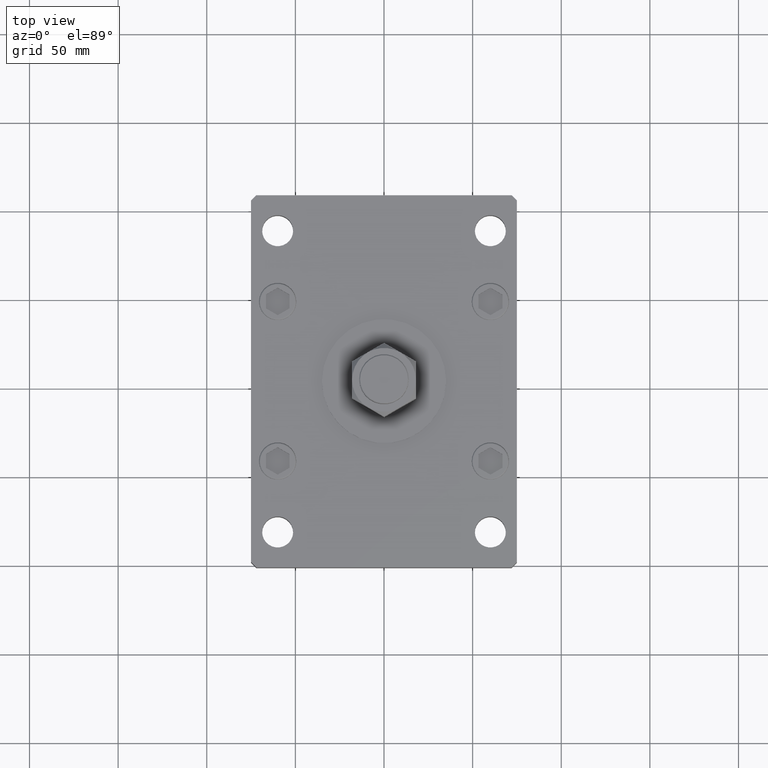
[diagram: clean part render]
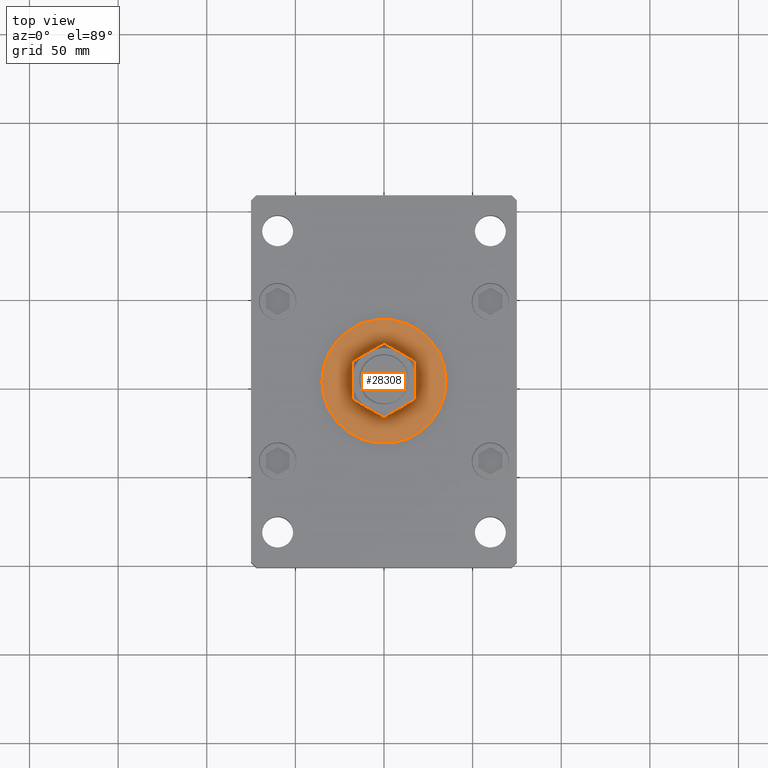
[diagram: same view with one face highlighted and labeled with its STEP entity id]
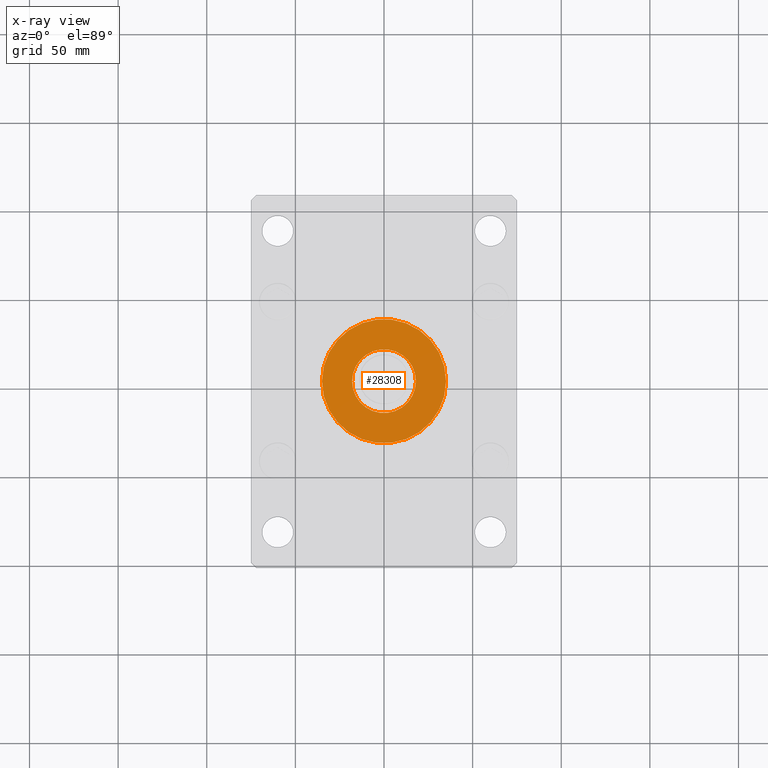
[diagram: x-ray of the same camera — body ghosted, the highlighted face saturated]
A machine part, top view. The second image highlights one B-rep face of the part: STEP entity #28308.
The next image is the same camera in x-ray: the body ghosted, the highlighted face saturated — about 0% of this face is hidden behind the body in this view.
In plain terms, the highlighted planar face has unit normal (0, 0, 1).
Its self-contained STEP definition (entity closure, byte-faithful):
#965 = VERTEX_POINT ( 'NONE', #21665 ) ;
#2093 = DIRECTION ( 'NONE',  ( 1.000000000000000000, 0.000000000000000000, 0.000000000000000000 ) ) ;
#2470 = CARTESIAN_POINT ( 'NONE',  ( 0.000000000000000000, 0.000000000000000000, 28.99999999999999645 ) ) ;
#3911 = DIRECTION ( 'NONE',  ( 0.000000000000000000, 0.000000000000000000, 1.000000000000000000 ) ) ;
#4380 = EDGE_LOOP ( 'NONE', ( #31790, #54957 ) ) ;
#8158 = ORIENTED_EDGE ( 'NONE', *, *, #54157, .F. ) ;
#8908 = CIRCLE ( 'NONE', #45489, 35.00000000000000711 ) ;
#10579 = FACE_OUTER_BOUND ( 'NONE', #4380, .T. ) ;
#11452 = AXIS2_PLACEMENT_3D ( 'NONE', #17314, #29903, #30446 ) ;
#11687 = PLANE ( 'NONE',  #31114 ) ;
#17314 = CARTESIAN_POINT ( 'NONE',  ( 0.000000000000000000, 0.000000000000000000, 28.99999999999999645 ) ) ;
#19754 = VERTEX_POINT ( 'NONE', #28006 ) ;
#19824 = CARTESIAN_POINT ( 'NONE',  ( 18.00000000000000000, 0.000000000000000000, 28.99999999999999645 ) ) ;
#20102 = VERTEX_POINT ( 'NONE', #19824 ) ;
#20637 = DIRECTION ( 'NONE',  ( 0.000000000000000000, 0.000000000000000000, 1.000000000000000000 ) ) ;
#21665 = CARTESIAN_POINT ( 'NONE',  ( -18.00000000000000000, 2.204364238465235428E-15, 28.99999999999999645 ) ) ;
#22019 = AXIS2_PLACEMENT_3D ( 'NONE', #2470, #30515, #49405 ) ;
#27302 = EDGE_CURVE ( 'NONE', #965, #20102, #35541, .T. ) ;
#28006 = CARTESIAN_POINT ( 'NONE',  ( -35.00000000000000711, 0.000000000000000000, 28.99999999999999645 ) ) ;
#28308 = ADVANCED_FACE ( 'NONE', ( #31823, #10579 ), #11687, .T. ) ;
#29903 = DIRECTION ( 'NONE',  ( 0.000000000000000000, 0.000000000000000000, 1.000000000000000000 ) ) ;
#30446 = DIRECTION ( 'NONE',  ( 1.000000000000000000, 0.000000000000000000, 0.000000000000000000 ) ) ;
#30515 = DIRECTION ( 'NONE',  ( 0.000000000000000000, 0.000000000000000000, 1.000000000000000000 ) ) ;
#30759 = EDGE_CURVE ( 'NONE', #19754, #45746, #8908, .T. ) ;
#31114 = AXIS2_PLACEMENT_3D ( 'NONE', #46065, #20637, #33201 ) ;
#31790 = ORIENTED_EDGE ( 'NONE', *, *, #30759, .T. ) ;
#31823 = FACE_BOUND ( 'NONE', #43563, .T. ) ;
#32701 = CIRCLE ( 'NONE', #22019, 18.00000000000000000 ) ;
#33201 = DIRECTION ( 'NONE',  ( 1.000000000000000000, 0.000000000000000000, -0.000000000000000000 ) ) ;
#33696 = CARTESIAN_POINT ( 'NONE',  ( 35.00000000000000711, 4.286263797015737285E-15, 28.99999999999999645 ) ) ;
#35541 = CIRCLE ( 'NONE', #11452, 18.00000000000000000 ) ;
#37726 = DIRECTION ( 'NONE',  ( 1.000000000000000000, 0.000000000000000000, 0.000000000000000000 ) ) ;
#39799 = CIRCLE ( 'NONE', #50537, 35.00000000000000711 ) ;
#41932 = CARTESIAN_POINT ( 'NONE',  ( 0.000000000000000000, 0.000000000000000000, 28.99999999999999645 ) ) ;
#43563 = EDGE_LOOP ( 'NONE', ( #8158, #51544 ) ) ;
#45489 = AXIS2_PLACEMENT_3D ( 'NONE', #41932, #3911, #37726 ) ;
#45746 = VERTEX_POINT ( 'NONE', #33696 ) ;
#46065 = CARTESIAN_POINT ( 'NONE',  ( 0.000000000000000000, 0.000000000000000000, 28.99999999999999645 ) ) ;
#46722 = DIRECTION ( 'NONE',  ( 0.000000000000000000, 0.000000000000000000, 1.000000000000000000 ) ) ;
#49405 = DIRECTION ( 'NONE',  ( 1.000000000000000000, 0.000000000000000000, 0.000000000000000000 ) ) ;
#50537 = AXIS2_PLACEMENT_3D ( 'NONE', #50911, #46722, #2093 ) ;
#50911 = CARTESIAN_POINT ( 'NONE',  ( 0.000000000000000000, 0.000000000000000000, 28.99999999999999645 ) ) ;
#51544 = ORIENTED_EDGE ( 'NONE', *, *, #27302, .F. ) ;
#52639 = EDGE_CURVE ( 'NONE', #45746, #19754, #39799, .T. ) ;
#54157 = EDGE_CURVE ( 'NONE', #20102, #965, #32701, .T. ) ;
#54957 = ORIENTED_EDGE ( 'NONE', *, *, #52639, .T. ) ;